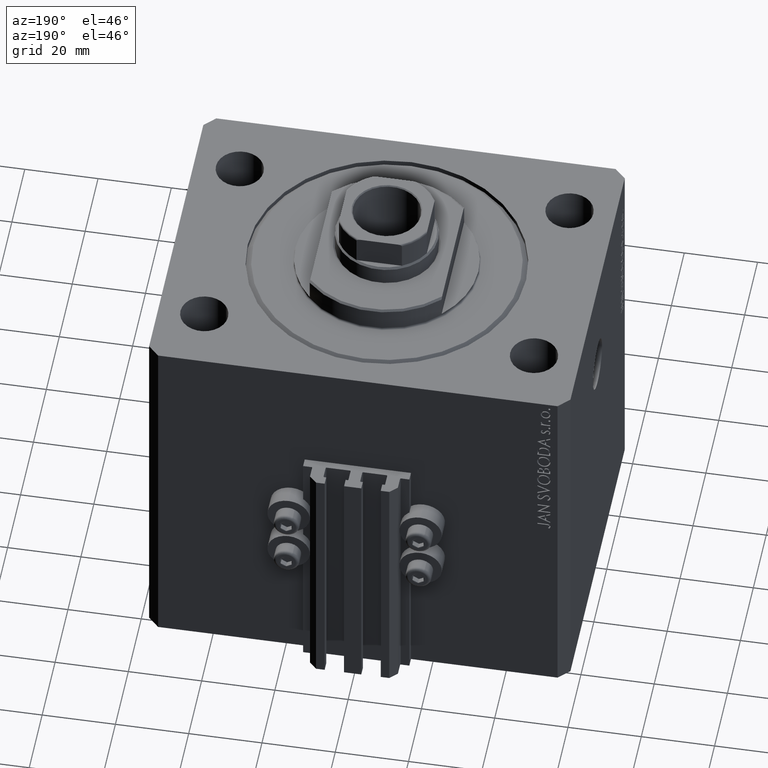
[diagram: clean part render]
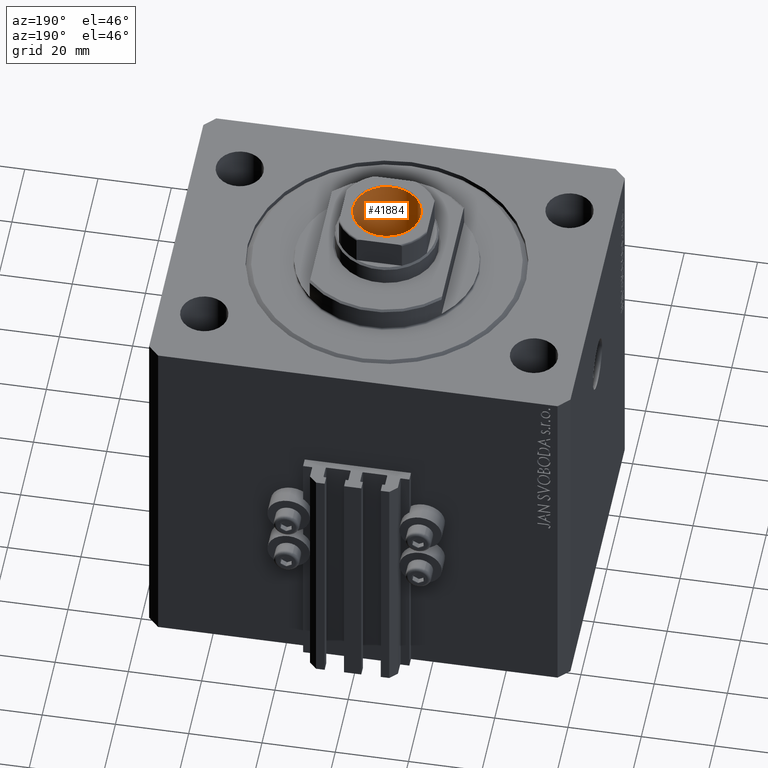
[diagram: same view with one face highlighted and labeled with its STEP entity id]
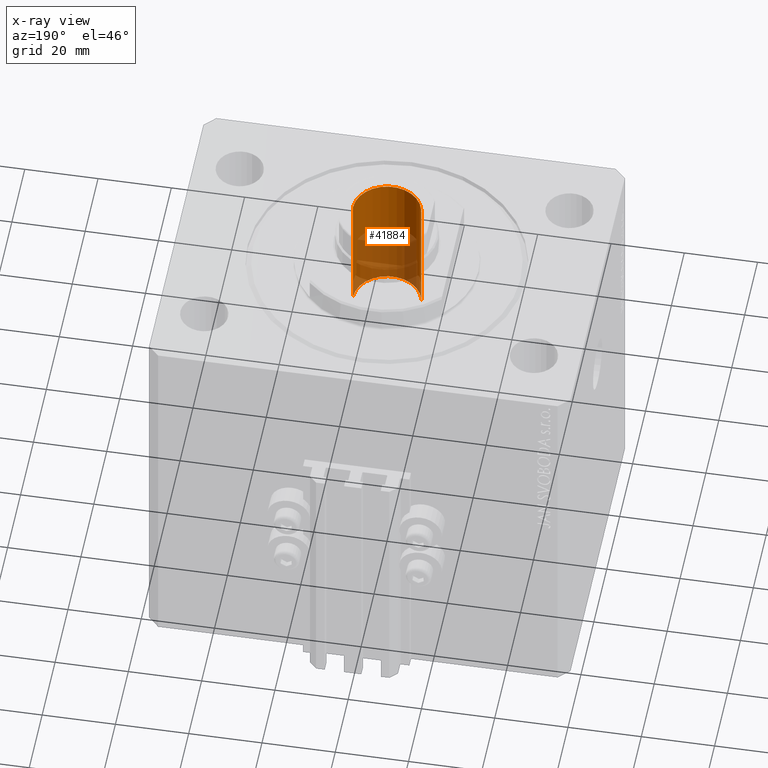
[diagram: x-ray of the same camera — body ghosted, the highlighted face saturated]
A machine part, auxiliary view. The second image highlights one B-rep face of the part: STEP entity #41884.
The next image is the same camera in x-ray: the body ghosted, the highlighted face saturated — about 46% of this face is hidden behind the body in this view.
In plain terms, the highlighted cylindrical surface (edge-blend (fillet) strip) has radius 9.25 mm, axis along (0, 0, 1).
Its self-contained STEP definition (entity closure, byte-faithful):
#170 = EDGE_CURVE ( 'NONE', #34687, #47180, #40332, .T. ) ;
#1423 = VECTOR ( 'NONE', #11639, 1000.000000000000000 ) ;
#1606 = AXIS2_PLACEMENT_3D ( 'NONE', #32348, #21578, #2463 ) ;
#2463 = DIRECTION ( 'NONE',  ( 1.000000000000000000, 0.000000000000000000, 0.000000000000000000 ) ) ;
#4429 = ORIENTED_EDGE ( 'NONE', *, *, #170, .F. ) ;
#5642 = ORIENTED_EDGE ( 'NONE', *, *, #38360, .T. ) ;
#6298 = LINE ( 'NONE', #34372, #37383 ) ;
#9495 = DIRECTION ( 'NONE',  ( 1.000000000000000000, 0.000000000000000000, 0.000000000000000000 ) ) ;
#11639 = DIRECTION ( 'NONE',  ( -0.000000000000000000, -0.000000000000000000, 1.000000000000000000 ) ) ;
#13949 = CYLINDRICAL_SURFACE ( 'NONE', #1606, 9.249999999999996447 ) ;
#17855 = CIRCLE ( 'NONE', #30826, 9.249999999999996447 ) ;
#20716 = CARTESIAN_POINT ( 'NONE',  ( 0.000000000000000000, 0.000000000000000000, 72.09999999999999432 ) ) ;
#20993 = EDGE_CURVE ( 'NONE', #45002, #41307, #17855, .T. ) ;
#21578 = DIRECTION ( 'NONE',  ( -0.000000000000000000, -0.000000000000000000, 1.000000000000000000 ) ) ;
#24676 = DIRECTION ( 'NONE',  ( 1.000000000000000000, 0.000000000000000000, 0.000000000000000000 ) ) ;
#25633 = CARTESIAN_POINT ( 'NONE',  ( 9.249999999999996447, 0.000000000000000000, 106.7999999999999972 ) ) ;
#28270 = CARTESIAN_POINT ( 'NONE',  ( 0.000000000000000000, 0.000000000000000000, 106.7999999999999972 ) ) ;
#28569 = CARTESIAN_POINT ( 'NONE',  ( 9.249999999999994671, 0.000000000000000000, 72.09999999999999432 ) ) ;
#30670 = ORIENTED_EDGE ( 'NONE', *, *, #40071, .F. ) ;
#30757 = CARTESIAN_POINT ( 'NONE',  ( -9.249999999999994671, 1.132798289211300909E-15, 72.09999999999999432 ) ) ;
#30826 = AXIS2_PLACEMENT_3D ( 'NONE', #28270, #42869, #24676 ) ;
#32348 = CARTESIAN_POINT ( 'NONE',  ( 0.000000000000000000, 0.000000000000000000, 107.0999999999999943 ) ) ;
#33875 = CARTESIAN_POINT ( 'NONE',  ( -9.249999999999996447, 1.132798289211301304E-15, 107.0999999999999943 ) ) ;
#34372 = CARTESIAN_POINT ( 'NONE',  ( 9.249999999999996447, 0.000000000000000000, 107.0999999999999943 ) ) ;
#34687 = VERTEX_POINT ( 'NONE', #30757 ) ;
#35243 = FACE_OUTER_BOUND ( 'NONE', #44735, .T. ) ;
#37383 = VECTOR ( 'NONE', #44899, 1000.000000000000000 ) ;
#38025 = AXIS2_PLACEMENT_3D ( 'NONE', #20716, #38916, #9495 ) ;
#38360 = EDGE_CURVE ( 'NONE', #34687, #45002, #44409, .T. ) ;
#38916 = DIRECTION ( 'NONE',  ( -0.000000000000000000, -0.000000000000000000, 1.000000000000000000 ) ) ;
#40071 = EDGE_CURVE ( 'NONE', #47180, #41307, #6298, .T. ) ;
#40332 = CIRCLE ( 'NONE', #38025, 9.249999999999994671 ) ;
#41307 = VERTEX_POINT ( 'NONE', #25633 ) ;
#41884 = ADVANCED_FACE ( 'NONE', ( #35243 ), #13949, .F. ) ;
#42869 = DIRECTION ( 'NONE',  ( 0.000000000000000000, 0.000000000000000000, 1.000000000000000000 ) ) ;
#44409 = LINE ( 'NONE', #33875, #1423 ) ;
#44735 = EDGE_LOOP ( 'NONE', ( #4429, #5642, #44781, #30670 ) ) ;
#44781 = ORIENTED_EDGE ( 'NONE', *, *, #20993, .T. ) ;
#44899 = DIRECTION ( 'NONE',  ( -0.000000000000000000, -0.000000000000000000, 1.000000000000000000 ) ) ;
#45002 = VERTEX_POINT ( 'NONE', #47122 ) ;
#47122 = CARTESIAN_POINT ( 'NONE',  ( -9.249999999999996447, 1.132798289211301304E-15, 106.7999999999999972 ) ) ;
#47180 = VERTEX_POINT ( 'NONE', #28569 ) ;